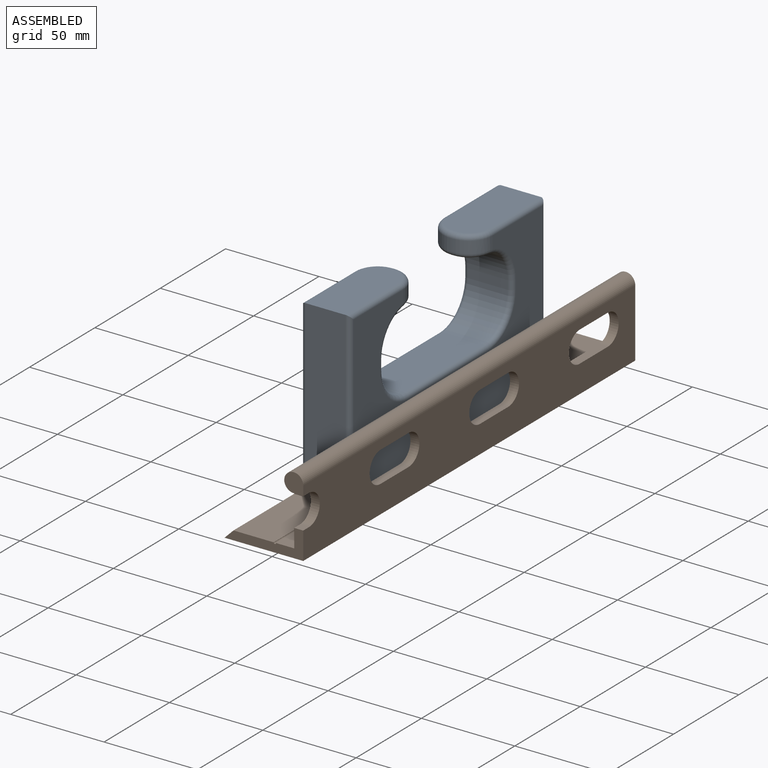
[diagram: assembled view]
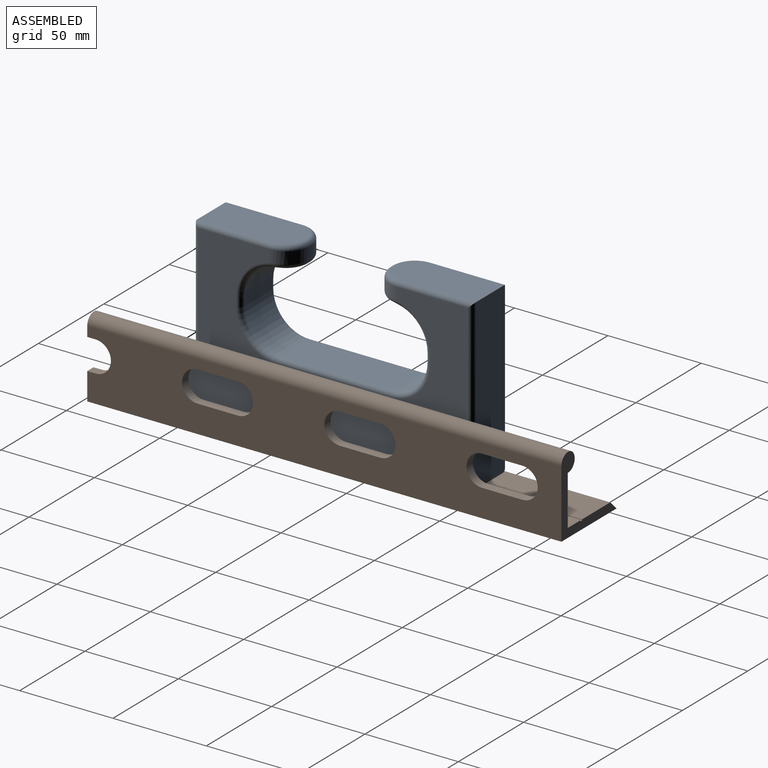
[diagram: assembled view, second angle]
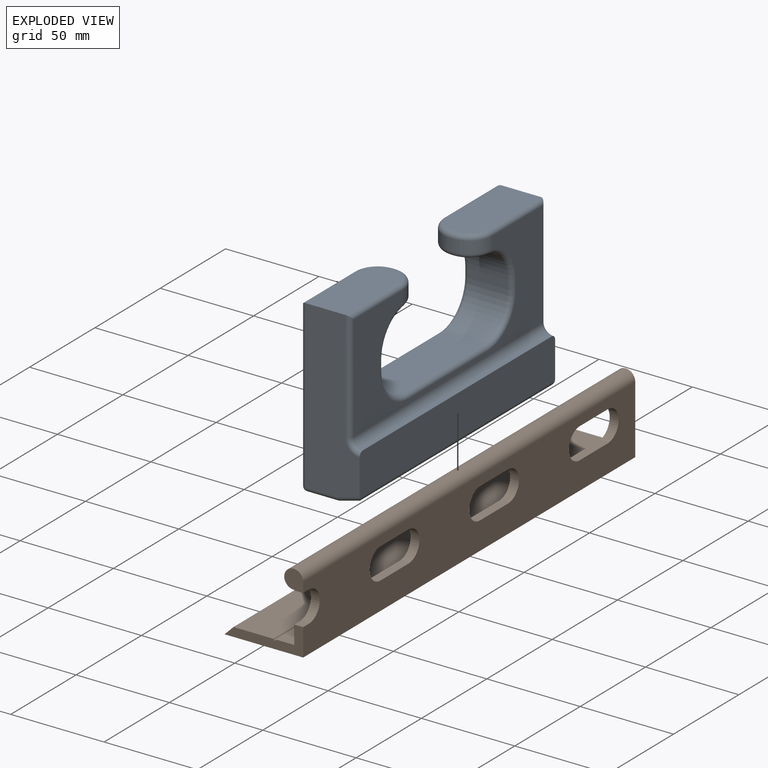
[diagram: exploded view]
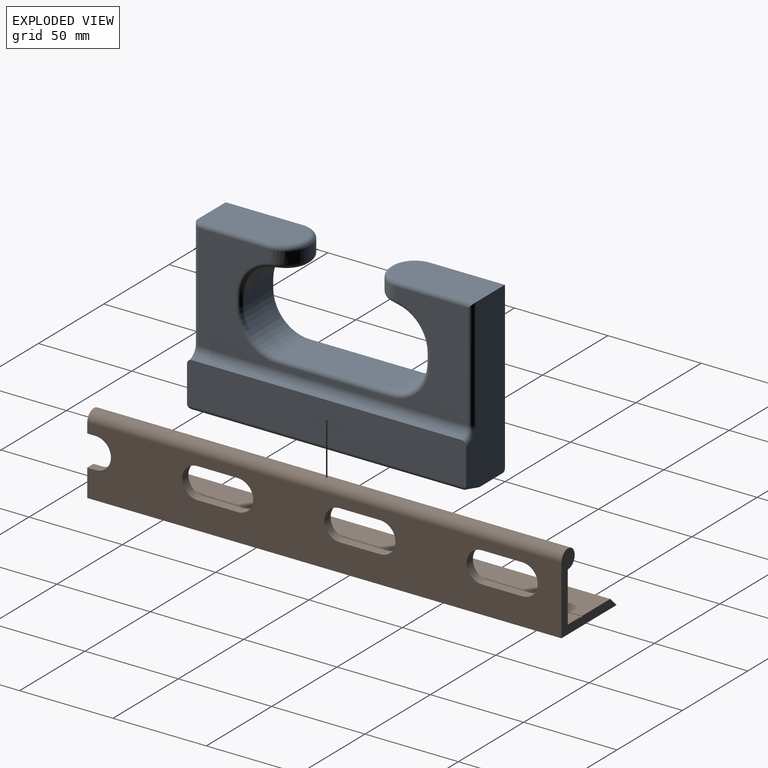
[diagram: exploded view, second angle]
ASSEMBLY  parts=2 mates=2
PART A: 76 faces, bbox 33.2x149.5x91.9 mm
  f0: plane 144.42x56.85mm, normal (1,0,0), area 3199.8mm2, adj f9,f22,f24,f31,f33,f35,f37,f39
  f1: plane 50.79x21.34mm, normal (0,0,1), area 1039.3mm2, adj f10,f51,f52,f53,f54,f56
  f2: plane 50.79x21.34mm, normal (0,0,1), area 1039.3mm2, adj f11,f71,f72,f73,f74,f75
  f3: plane 19.84x6.34mm, normal (0,0,-1), area 92.8mm2, adj f15,f25,f26,f27
  f4: plane 19.84x6.34mm, normal (0,0,-1), area 92.8mm2, adj f18,f46,f47,f48
  f5: plane 144.42x86.79mm, normal (-1,0,0), area 7524.5mm2, adj f21,f23,f30,f32,f34,f36,f38,f40
  f6: plane 144.42x16.68mm, normal (0,0,-1), area 2409.5mm2, adj f60,f61,f65,f66
  f7: plane 144.42x9.73mm, normal (0.26,0,-0.97), area 1455.2mm2, adj f55,f58,f61,f62
  f8: plane 149.51x22.26mm, normal (1,0,0), area 3324.7mm2, adj f9,f10,f11,f49,f55,f58,f62,f67
  f9: cylinder r=5.08mm len=144.42mm, axis (0,1,0), area 1152.5mm2, adj f0,f8,f49,f67
  f10: plane 89.33x28.96mm, normal (0,-1,0), area 2068.4mm2, adj f1,f8,f49,f50,f55,f59,f60
  f11: plane 89.33x28.96mm, normal (0,1,0), area 2068.4mm2, adj f2,f8,f62,f66,f67,f69,f70
  f12: plane 60.6x21.34mm, normal (0,0,1), area 1293.1mm2, adj f16,f17,f36,f37
  f13: plane 21.34x4.75mm, normal (0,-1,0), area 101.3mm2, adj f17,f18,f40,f41
  f14: plane 21.34x4.75mm, normal (0,1,0), area 101.3mm2, adj f15,f16,f32,f33
  f15: cylinder r=19.05mm len=21.34mm, axis (1,0,0), area 636.8mm2, adj f3,f14,f28,f29,f30,f31
  f16: cylinder r=19.05mm len=21.34mm, axis (-1,0,0), area 638.5mm2, adj f12,f14,f34,f35
  f17: cylinder r=19.05mm len=21.34mm, axis (1,0,0), area 638.5mm2, adj f12,f13,f38,f39
  f18: cylinder r=19.05mm len=21.34mm, axis (-1,0,0), area 636.8mm2, adj f4,f13,f42,f43,f44,f45
  f19: plane 6.38x1.02mm, normal (0,-1,0), area 6.5mm2, adj f23,f24,f48,f75
  f20: plane 6.38x1.02mm, normal (0,1,0), area 6.5mm2, adj f21,f22,f25,f53
  f21: cylinder r=12.7mm len=12.7mm, axis (0,0,1), area 127.8mm2, adj f5,f20,f26,f28,f54
  f22: cylinder r=12.7mm len=12.7mm, axis (0,0,1), area 127.8mm2, adj f0,f20,f27,f29,f52
  f23: cylinder r=12.7mm len=12.7mm, axis (0,0,1), area 127.8mm2, adj f5,f19,f44,f46,f74
  f24: cylinder r=12.7mm len=12.7mm, axis (0,0,1), area 127.8mm2, adj f0,f19,f45,f47,f73
  f25: cylinder r=2.54mm len=2.54mm, axis (-1,0,0), area 4.1mm2, adj f3,f20,f26,f27
  f26: torus R=10.16mm, axis (0,0,1), area 55.7mm2, adj f3,f21,f25,f28
  f27: torus R=10.16mm, axis (0,0,1), area 55.7mm2, adj f3,f22,f25,f29
  f28: bspline ~8.65x4.35mm, area 16.9mm2, adj f15,f21,f26,f30
  f29: bspline ~8.65x4.35mm, area 16.9mm2, adj f15,f22,f27,f31
  f30: torus R=21.59mm, axis (1,0,0), area 111mm2, adj f5,f15,f28,f32
  f31: torus R=21.59mm, axis (-1,0,0), area 111mm2, adj f0,f15,f29,f33
  f32: cylinder r=2.54mm len=4.75mm, axis (0,0,-1), area 19mm2, adj f5,f14,f30,f34
  f33: cylinder r=2.54mm len=4.75mm, axis (0,0,1), area 19mm2, adj f0,f14,f31,f35
  f34: torus R=21.59mm, axis (1,0,0), area 125.2mm2, adj f5,f16,f32,f36
  f35: torus R=21.59mm, axis (-1,0,0), area 125.2mm2, adj f0,f16,f33,f37
  f36: cylinder r=2.54mm len=60.6mm, axis (0,1,0), area 241.8mm2, adj f5,f12,f34,f38
  f37: cylinder r=2.54mm len=60.6mm, axis (0,-1,0), area 241.8mm2, adj f0,f12,f35,f39
  f38: torus R=21.59mm, axis (1,0,0), area 125.2mm2, adj f5,f17,f36,f40
  f39: torus R=21.59mm, axis (-1,0,0), area 125.2mm2, adj f0,f17,f37,f41
  f40: cylinder r=2.54mm len=4.75mm, axis (0,0,1), area 19mm2, adj f5,f13,f38,f42
  f41: cylinder r=2.54mm len=4.75mm, axis (0,0,-1), area 19mm2, adj f0,f13,f39,f43
  f42: torus R=21.59mm, axis (1,0,0), area 111mm2, adj f5,f18,f40,f44
  f43: torus R=21.59mm, axis (-1,0,0), area 111mm2, adj f0,f18,f41,f45
  f44: bspline ~8.65x4.35mm, area 16.9mm2, adj f18,f23,f42,f46
  f45: bspline ~8.65x4.35mm, area 16.9mm2, adj f18,f24,f43,f47
  f46: torus R=10.16mm, axis (0,0,1), area 55.7mm2, adj f4,f23,f44,f48
  f47: torus R=10.16mm, axis (0,0,1), area 55.7mm2, adj f4,f24,f45,f48
  f48: cylinder r=2.54mm len=2.54mm, axis (1,0,0), area 4.1mm2, adj f4,f19,f46,f47
  f49: torus R=7.62mm, axis (0,-1,0), area 37.6mm2, adj f8,f9,f10,f50
  f50: cylinder r=2.54mm len=59.39mm, axis (0,0,-1), area 233.3mm2, adj f0,f10,f49,f51
  f51: cylinder r=2.54mm len=40.63mm, axis (0,1,0), area 158.4mm2, adj f0,f1,f50,f52
  f52: torus R=10.16mm, axis (0,0,-1), area 73.8mm2, adj f1,f22,f51,f53
  f53: cylinder r=2.54mm len=2.54mm, axis (1,0,0), area 4.1mm2, adj f1,f20,f52,f54
  f54: torus R=10.16mm, axis (0,0,-1), area 73.8mm2, adj f1,f21,f53,f56
  f55: cylinder r=2.54mm len=12.93mm, axis (-0.97,0,-0.26), area 46.7mm2, adj f7,f8,f10,f57,f58
  f56: cylinder r=2.54mm len=40.63mm, axis (0,1,0), area 158.4mm2, adj f1,f5,f54,f59
  f57: sphere r=2.54mm, area 1.7mm2, adj f55,f60,f61
  f58: cylinder r=2.54mm len=149.33mm, axis (0,-1,0), area 489.8mm2, adj f7,f8,f55,f62
  f59: cylinder r=2.54mm len=89.33mm, axis (0,0,1), area 352.7mm2, adj f5,f10,f56,f63
  f60: cylinder r=2.54mm len=16.68mm, axis (-1,0,0), area 66.6mm2, adj f6,f10,f57,f63
  f61: cylinder r=2.54mm len=144.42mm, axis (0,1,0), area 96mm2, adj f6,f7,f57,f64
  f62: cylinder r=2.54mm len=12.93mm, axis (0.97,0,0.26), area 46.7mm2, adj f7,f8,f11,f58,f64
  f63: sphere r=2.54mm, area 10.1mm2, adj f59,f60,f65
  f64: sphere r=2.54mm, area 1.7mm2, adj f61,f62,f66
  f65: cylinder r=2.54mm len=144.42mm, axis (0,1,0), area 576.2mm2, adj f5,f6,f63,f68
  f66: cylinder r=2.54mm len=16.68mm, axis (1,0,0), area 66.6mm2, adj f6,f11,f64,f68
  f67: torus R=7.62mm, axis (0,-1,0), area 37.6mm2, adj f8,f9,f11,f69
  f68: sphere r=2.54mm, area 10.1mm2, adj f65,f66,f70
  f69: cylinder r=2.54mm len=59.39mm, axis (0,0,1), area 233.3mm2, adj f0,f11,f67,f71
  f70: cylinder r=2.54mm len=89.33mm, axis (0,0,-1), area 352.7mm2, adj f5,f11,f68,f72
  f71: cylinder r=2.54mm len=40.63mm, axis (0,1,0), area 158.4mm2, adj f0,f2,f69,f73
  f72: cylinder r=2.54mm len=40.63mm, axis (0,1,0), area 158.4mm2, adj f2,f5,f70,f74
  f73: torus R=10.16mm, axis (0,0,-1), area 73.8mm2, adj f2,f24,f71,f75
  f74: torus R=10.16mm, axis (0,0,-1), area 73.8mm2, adj f2,f23,f72,f75
  f75: cylinder r=2.54mm len=2.54mm, axis (-1,0,0), area 4.1mm2, adj f2,f19,f73,f74
PART B: 26 faces, bbox 42.1x254x41.6 mm
  f0: plane 10.41x10.16mm, normal (0,-1,0), area 87.8mm2, adj f3,f12,f13,f14
  f1: plane 4.8x4.45mm, normal (0,0,1), area 21.3mm2, adj f2,f12,f13,f20
  f2: cylinder r=8.26mm len=16.51mm, axis (-1,0,0), area 124.5mm2, adj f1,f3,f12,f13
  f3: plane 4.8x4.45mm, normal (0,0,-1), area 21.3mm2, adj f0,f2,f12,f13
  f4: plane 21.59x4.8mm, normal (0,0,1), area 103.6mm2, adj f5,f7,f12,f13
  f5: cylinder r=8.26mm len=16.51mm, axis (-1,0,0), area 124.5mm2, adj f4,f6,f12,f13
  f6: plane 21.59x4.8mm, normal (0,0,-1), area 103.6mm2, adj f5,f7,f12,f13
  f7: cylinder r=8.26mm len=16.51mm, axis (-1,0,0), area 124.5mm2, adj f4,f6,f12,f13
  f8: plane 21.59x4.8mm, normal (0,0,1), area 103.6mm2, adj f9,f11,f12,f13
  f9: cylinder r=8.26mm len=16.51mm, axis (-1,0,0), area 124.5mm2, adj f8,f10,f12,f13
  f10: plane 21.59x4.8mm, normal (0,0,-1), area 103.6mm2, adj f9,f11,f12,f13
  f11: cylinder r=8.26mm len=16.51mm, axis (-1,0,0), area 124.5mm2, adj f8,f10,f12,f13
  f12: plane 254x36.55mm, normal (1,0,0), area 7391.8mm2, adj f0,f1,f2,f3,f4,f5,f6,f7
  f13: plane 254x26.68mm, normal (-1,0,0), area 4884.1mm2, adj f0,f1,f2,f3,f4,f5,f6,f7
  f14: cylinder r=5.08mm len=254mm, axis (0,1,0), area 6151.5mm2, adj f0,f12,f13,f21
  f15: plane 254x9.75mm, normal (0,0,1), area 2477.4mm2, adj f13,f16,f20,f21
  f16: cylinder r=0.64mm len=254mm, axis (0,1,0), area 506.7mm2, adj f15,f17,f20,f21
  f17: plane 254x21.51mm, normal (0,0,1), area 5464.5mm2, adj f16,f18,f20,f21
  f18: plane 254x4.8mm, normal (-0.71,0,0.71), area 1724.4mm2, adj f17,f19,f20,f21
  f19: plane 254x42.14mm, normal (0,0,-1), area 10703.2mm2, adj f12,f18,f20,f21
  f20: plane 42.14x14.71mm, normal (0,-1,0), area 237.7mm2, adj f1,f12,f13,f15,f16,f17,f18,f19
  f21: plane 42.14x41.63mm, normal (0,1,0), area 404.8mm2, adj f12,f13,f14,f15,f16,f17,f18,f19
  f22: plane 21.59x4.8mm, normal (0,0,1), area 103.6mm2, adj f12,f13,f23,f25
  f23: cylinder r=8.26mm len=16.51mm, axis (-1,0,0), area 124.5mm2, adj f12,f13,f22,f24
  f24: plane 21.59x4.8mm, normal (0,0,-1), area 103.6mm2, adj f12,f13,f23,f25
  f25: cylinder r=8.26mm len=16.51mm, axis (-1,0,0), area 124.5mm2, adj f12,f13,f22,f24
PLACE A t=(-128.41,164.24,-12.12)mm
PLACE B t=(-128.41,218.68,-12.12)mm
MATE planar A.f6 <-> B.f17  axis (0,0,-1) through (-149.02,89.48,-12.12)mm
MATE planar A.f8 <-> B.f13  axis (1,0,0) through (-128.41,89.48,4.15)mm
